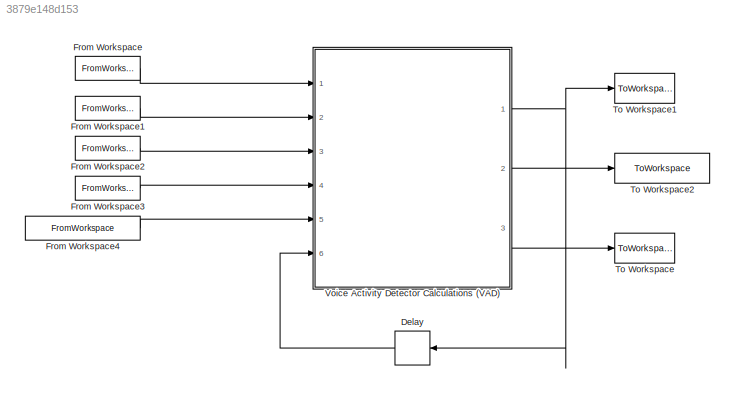
MODEL slx_3879e148d153
KIND model
CONFIG AbsTol = auto
CONFIG EnableMultiTasking = off
CONFIG FixedStep = auto
CONFIG InitFcn = block_verScript;
CONFIG MaxStep = auto
CONFIG MinStep = auto
CONFIG RelTol = 1e-3
CONFIG SampleTimeConstraint = Unconstrained
CONFIG Solver = VariableStepAuto
CONFIG SolverName = VariableStepAuto
CONFIG StartTime = 0.0
CONFIG StopTime = (nSamp-1)*Ts
BLOCK [Delay] Delay
  DelayLength = 1
  InitialCondition = 0
  InputPortMap = u0
  Ports = [1, 1]
  SampleTime = Ts
BLOCK [FromWorkspace] From Workspace
  SampleTime = Ts
  VariableName = postSNRSim
  ZeroCross = on
BLOCK [FromWorkspace] From Workspace1
  SampleTime = Ts
  VariableName = noiseVarianceSim
  ZeroCross = on
BLOCK [FromWorkspace] From Workspace2
  SampleTime = Ts
  VariableName = ksiSim
  ZeroCross = on
BLOCK [FromWorkspace] From Workspace3
  SampleTime = Ts
  VariableName = FFT_sizeInv
  ZeroCross = on
BLOCK [FromWorkspace] From Workspace4
  SampleTime = Ts
  VariableName = noisePowerSim
  ZeroCross = on
BLOCK [ToWorkspace] To Workspace
  FixptAsFi = on
  MaxDataPoints = inf
  Ports = [1]
  SampleTime = Ts
  SaveFormat = Structure With Time
  VariableName = noisePowerOut
BLOCK [ToWorkspace] To Workspace1
  FixptAsFi = on
  MaxDataPoints = inf
  Ports = [1]
  SampleTime = Ts
  SaveFormat = Timeseries
  VariableName = countOut
BLOCK [ToWorkspace] To Workspace2
  FixptAsFi = on
  MaxDataPoints = inf
  Ports = [1]
  SampleTime = Ts
  SaveFormat = Structure With Time
  VariableName = noiseVarianceOut
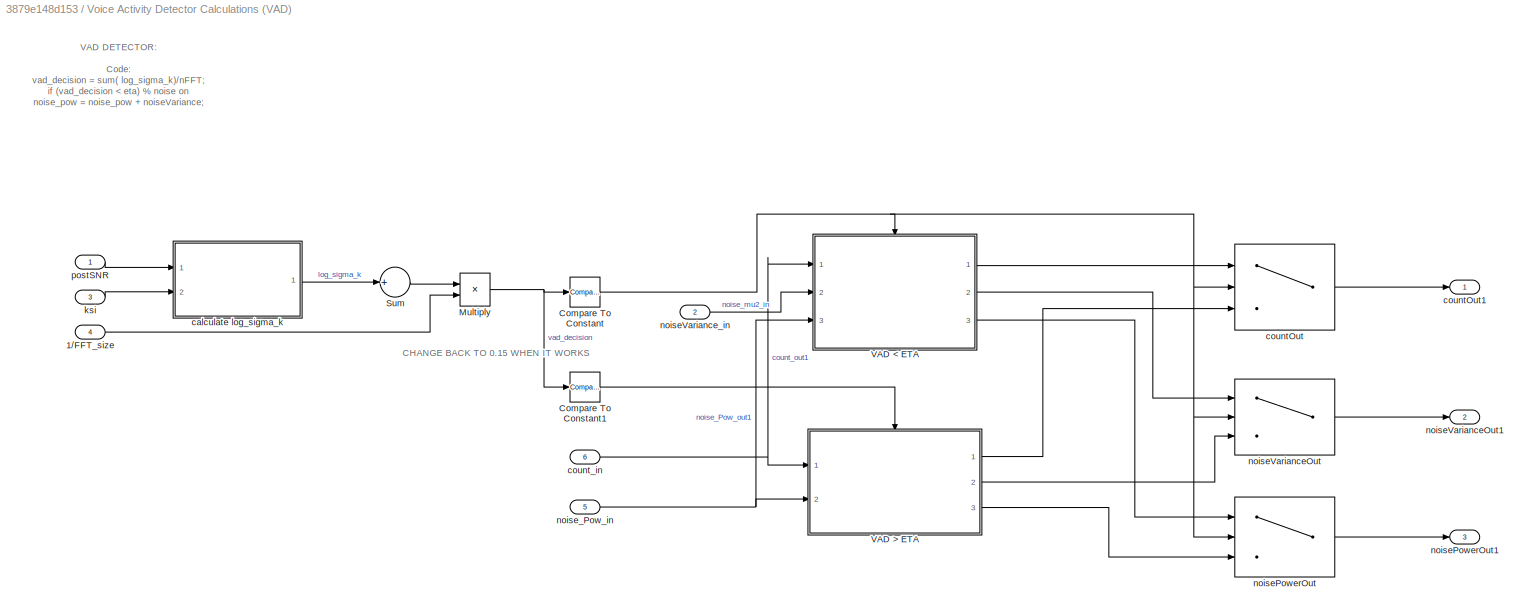
BLOCK [SubSystem] Voice Activity Detector Calculations (VAD)
  Ports = [6, 3]
  RequestExecContextInheritance = off
BLOCK [Inport] Voice Activity Detector Calculations (VAD)/1//FFT_size
  IconDisplay = Port number
  Port = 4
BLOCK [Reference] Voice Activity Detector Calculations (VAD)/Compare To Constant  REF=simulink/Logic and Bit
Operations/Compare
To Constant
  Ports = [1, 1]
  SourceBlock = simulink/Logic and Bit\nOperations/Compare\nTo Constant
  SourceProductBaseCode = SL
  SourceProductName = Simulink
  SourceType = Compare To Constant
BLOCK [Reference] Voice Activity Detector Calculations (VAD)/Compare To Constant1  REF=simulink/Logic and Bit
Operations/Compare
To Constant
  Ports = [1, 1]
  SourceBlock = simulink/Logic and Bit\nOperations/Compare\nTo Constant
  SourceProductBaseCode = SL
  SourceProductName = Simulink
  SourceType = Compare To Constant
BLOCK [Product] Voice Activity Detector Calculations (VAD)/Multiply
  InputSameDT = off
  Inputs = **
  OutDataTypeStr = Inherit: Inherit via internal rule
  Ports = [2, 1]
BLOCK [Sum] Voice Activity Detector Calculations (VAD)/Sum
  IconShape = round
  InputSameDT = off
  Inputs = +
  OutDataTypeStr = Inherit: Inherit via internal rule
  Ports = [1, 1]
  SaturateOnIntegerOverflow = off
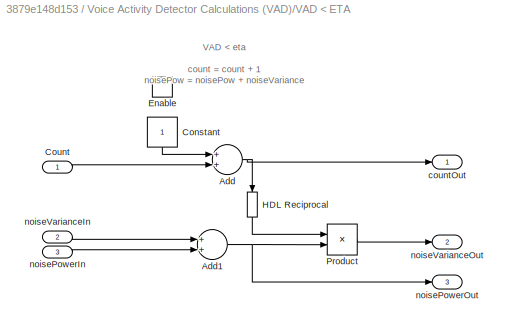
BLOCK [SubSystem] Voice Activity Detector Calculations (VAD)/VAD < ETA
  Ports = [3, 3, 1]
  RequestExecContextInheritance = off
  TreatAsAtomicUnit = on
BLOCK [Sum] Voice Activity Detector Calculations (VAD)/VAD < ETA/Add
  InputSameDT = off
  OutDataTypeStr = Inherit: Inherit via internal rule
  Ports = [2, 1]
  SaturateOnIntegerOverflow = off
BLOCK [Sum] Voice Activity Detector Calculations (VAD)/VAD < ETA/Add1
  InputSameDT = off
  OutDataTypeStr = Inherit: Inherit via internal rule
  Ports = [2, 1]
  SaturateOnIntegerOverflow = off
BLOCK [Constant] Voice Activity Detector Calculations (VAD)/VAD < ETA/Constant
  SampleTime = -1
BLOCK [Inport] Voice Activity Detector Calculations (VAD)/VAD < ETA/Count
  IconDisplay = Port number
BLOCK [EnablePort] Voice Activity Detector Calculations (VAD)/VAD < ETA/Enable
  Ports = []
BLOCK [Reciprocal] Voice Activity Detector Calculations (VAD)/VAD < ETA/HDL Reciprocal
BLOCK [Product] Voice Activity Detector Calculations (VAD)/VAD < ETA/Product
  InputSameDT = off
  OutDataTypeStr = Inherit: Inherit via internal rule
  Ports = [2, 1]
  RndMeth = Floor
  SaturateOnIntegerOverflow = off
BLOCK [Outport] Voice Activity Detector Calculations (VAD)/VAD < ETA/countOut
  IconDisplay = Port number
  InitialOutput = 0
BLOCK [Inport] Voice Activity Detector Calculations (VAD)/VAD < ETA/noisePowerIn
  IconDisplay = Port number
  Port = 3
BLOCK [Outport] Voice Activity Detector Calculations (VAD)/VAD < ETA/noisePowerOut
  IconDisplay = Port number
  InitialOutput = 0
  Port = 3
BLOCK [Inport] Voice Activity Detector Calculations (VAD)/VAD < ETA/noiseVarianceIn
  IconDisplay = Port number
  Port = 2
BLOCK [Outport] Voice Activity Detector Calculations (VAD)/VAD < ETA/noiseVarianceOut
  IconDisplay = Port number
  InitialOutput = 0
  Port = 2
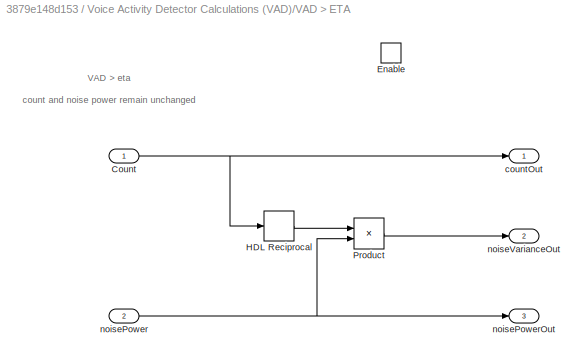
BLOCK [SubSystem] Voice Activity Detector Calculations (VAD)/VAD > ETA
  Ports = [2, 3, 1]
  RequestExecContextInheritance = off
BLOCK [Inport] Voice Activity Detector Calculations (VAD)/VAD > ETA/Count
  IconDisplay = Port number
BLOCK [EnablePort] Voice Activity Detector Calculations (VAD)/VAD > ETA/Enable
  Ports = []
BLOCK [Reciprocal] Voice Activity Detector Calculations (VAD)/VAD > ETA/HDL Reciprocal
BLOCK [Product] Voice Activity Detector Calculations (VAD)/VAD > ETA/Product
  InputSameDT = off
  OutDataTypeStr = Inherit: Inherit via internal rule
  Ports = [2, 1]
  RndMeth = Floor
  SaturateOnIntegerOverflow = off
BLOCK [Outport] Voice Activity Detector Calculations (VAD)/VAD > ETA/countOut
  IconDisplay = Port number
BLOCK [Inport] Voice Activity Detector Calculations (VAD)/VAD > ETA/noisePower
  IconDisplay = Port number
  Port = 2
BLOCK [Outport] Voice Activity Detector Calculations (VAD)/VAD > ETA/noisePowerOut
  IconDisplay = Port number
  Port = 3
BLOCK [Outport] Voice Activity Detector Calculations (VAD)/VAD > ETA/noiseVarianceOut
  IconDisplay = Port number
  Port = 2
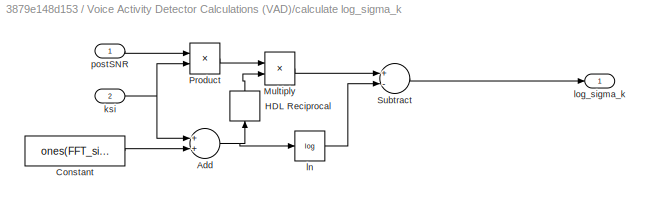
BLOCK [SubSystem] Voice Activity Detector Calculations (VAD)/calculate log_sigma_k
  Ports = [2, 1]
  RequestExecContextInheritance = off
BLOCK [Sum] Voice Activity Detector Calculations (VAD)/calculate log_sigma_k/Add
  InputSameDT = off
  OutDataTypeStr = Inherit: Inherit via internal rule
  Ports = [2, 1]
  SaturateOnIntegerOverflow = off
BLOCK [Constant] Voice Activity Detector Calculations (VAD)/calculate log_sigma_k/Constant
  SampleTime = -1
  Value = ones(FFT_size, 1)
BLOCK [Reciprocal] Voice Activity Detector Calculations (VAD)/calculate log_sigma_k/HDL Reciprocal
BLOCK [Product] Voice Activity Detector Calculations (VAD)/calculate log_sigma_k/Multiply
  InputSameDT = off
  Inputs = **
  OutDataTypeStr = Inherit: Inherit via internal rule
  Ports = [2, 1]
BLOCK [Product] Voice Activity Detector Calculations (VAD)/calculate log_sigma_k/Product
  InputSameDT = off
  OutDataTypeStr = Inherit: Inherit via internal rule
  Ports = [2, 1]
  RndMeth = Floor
  SaturateOnIntegerOverflow = off
BLOCK [Sum] Voice Activity Detector Calculations (VAD)/calculate log_sigma_k/Subtract
  InputSameDT = off
  Inputs = +-
  OutDataTypeStr = Inherit: Inherit via internal rule
  Ports = [2, 1]
  SaturateOnIntegerOverflow = off
BLOCK [Inport] Voice Activity Detector Calculations (VAD)/calculate log_sigma_k/ksi
  IconDisplay = Port number
  Port = 2
BLOCK [Math] Voice Activity Detector Calculations (VAD)/calculate log_sigma_k/ln
  Operator = log
  Ports = [1, 1]
BLOCK [Outport] Voice Activity Detector Calculations (VAD)/calculate log_sigma_k/log_sigma_k
  IconDisplay = Port number
BLOCK [Inport] Voice Activity Detector Calculations (VAD)/calculate log_sigma_k/postSNR
  IconDisplay = Port number
BLOCK [Switch] Voice Activity Detector Calculations (VAD)/countOut
  InputSameDT = off
  SaturateOnIntegerOverflow = off
  Threshold = 1
BLOCK [Outport] Voice Activity Detector Calculations (VAD)/countOut1
  IconDisplay = Port number
  InitialOutput = 0
BLOCK [Inport] Voice Activity Detector Calculations (VAD)/count_in
  IconDisplay = Port number
  Port = 6
BLOCK [Inport] Voice Activity Detector Calculations (VAD)/ksi
  IconDisplay = Port number
  Port = 3
BLOCK [Switch] Voice Activity Detector Calculations (VAD)/noisePowerOut
  InputSameDT = off
  SaturateOnIntegerOverflow = off
  Threshold = 1
BLOCK [Outport] Voice Activity Detector Calculations (VAD)/noisePowerOut1
  IconDisplay = Port number
  InitialOutput = 0
  Port = 3
BLOCK [Switch] Voice Activity Detector Calculations (VAD)/noiseVarianceOut
  InputSameDT = off
  SaturateOnIntegerOverflow = off
  Threshold = 1
BLOCK [Outport] Voice Activity Detector Calculations (VAD)/noiseVarianceOut1
  IconDisplay = Port number
  InitialOutput = 0
  Port = 2
BLOCK [Inport] Voice Activity Detector Calculations (VAD)/noiseVariance_in
  IconDisplay = Port number
  Port = 2
BLOCK [Inport] Voice Activity Detector Calculations (VAD)/noise_Pow_in 
  IconDisplay = Port number
  Port = 5
BLOCK [Inport] Voice Activity Detector Calculations (VAD)/postSNR
  IconDisplay = Port number
ANNOTATION Voice Activity Detector Calculations (VAD): CHANGE BACK TO 0.15 WHEN IT WORKS
ANNOTATION Voice Activity Detector Calculations (VAD): VAD DETECTOR: Code: vad_decision = sum( log_sigma_k)/nFFT; if (vad_decision < eta) % noise on noise_pow = noise_pow + noiseVariance; count = count+1; end noiseVariance = noise_pow./count; The two subsystems represent the updated noise variance, noise power, and count variables based on whether or not VAD < eta.
ANNOTATION Voice Activity Detector Calculations (VAD)/VAD < ETA: VAD < eta count = count + 1 noisePow = noisePow + noiseVariance
ANNOTATION Voice Activity Detector Calculations (VAD)/VAD > ETA: VAD > eta count and noise power remain unchanged
LINE Delay:1 -> Voice Activity Detector Calculations (VAD):6
LINE From Workspace1:1 -> Voice Activity Detector Calculations (VAD):2
LINE From Workspace2:1 -> Voice Activity Detector Calculations (VAD):3
LINE From Workspace3:1 -> Voice Activity Detector Calculations (VAD):4
LINE From Workspace4:1 -> Voice Activity Detector Calculations (VAD):5
LINE From Workspace:1 -> Voice Activity Detector Calculations (VAD):1
LINE Voice Activity Detector Calculations (VAD)/1//FFT_size:1 -> Voice Activity Detector Calculations (VAD)/Multiply:2
LINE Voice Activity Detector Calculations (VAD)/Compare To Constant1:1 -> Voice Activity Detector Calculations (VAD)/VAD > ETA:enable
NET Voice Activity Detector Calculations (VAD)/Compare To Constant:1 -> Voice Activity Detector Calculations (VAD)/VAD < ETA:enable, Voice Activity Detector Calculations (VAD)/countOut:2, Voice Activity Detector Calculations (VAD)/noisePowerOut:2, Voice Activity Detector Calculations (VAD)/noiseVarianceOut:2
NET Voice Activity Detector Calculations (VAD)/Multiply:1 -> Voice Activity Detector Calculations (VAD)/Compare To Constant1:1, Voice Activity Detector Calculations (VAD)/Compare To Constant:1
LINE Voice Activity Detector Calculations (VAD)/Sum:1 -> Voice Activity Detector Calculations (VAD)/Multiply:1
NET Voice Activity Detector Calculations (VAD)/VAD < ETA/Add1:1 -> Voice Activity Detector Calculations (VAD)/VAD < ETA/Product:2, Voice Activity Detector Calculations (VAD)/VAD < ETA/noisePowerOut:1
NET Voice Activity Detector Calculations (VAD)/VAD < ETA/Add:1 -> Voice Activity Detector Calculations (VAD)/VAD < ETA/HDL Reciprocal:1, Voice Activity Detector Calculations (VAD)/VAD < ETA/countOut:1
LINE Voice Activity Detector Calculations (VAD)/VAD < ETA/Constant:1 -> Voice Activity Detector Calculations (VAD)/VAD < ETA/Add:1
LINE Voice Activity Detector Calculations (VAD)/VAD < ETA/Count:1 -> Voice Activity Detector Calculations (VAD)/VAD < ETA/Add:2
LINE Voice Activity Detector Calculations (VAD)/VAD < ETA/HDL Reciprocal:1 -> Voice Activity Detector Calculations (VAD)/VAD < ETA/Product:1
LINE Voice Activity Detector Calculations (VAD)/VAD < ETA/Product:1 -> Voice Activity Detector Calculations (VAD)/VAD < ETA/noiseVarianceOut:1
LINE Voice Activity Detector Calculations (VAD)/VAD < ETA/noisePowerIn:1 -> Voice Activity Detector Calculations (VAD)/VAD < ETA/Add1:2
LINE Voice Activity Detector Calculations (VAD)/VAD < ETA/noiseVarianceIn:1 -> Voice Activity Detector Calculations (VAD)/VAD < ETA/Add1:1
LINE Voice Activity Detector Calculations (VAD)/VAD < ETA:1 -> Voice Activity Detector Calculations (VAD)/countOut:1
LINE Voice Activity Detector Calculations (VAD)/VAD < ETA:2 -> Voice Activity Detector Calculations (VAD)/noiseVarianceOut:1
LINE Voice Activity Detector Calculations (VAD)/VAD < ETA:3 -> Voice Activity Detector Calculations (VAD)/noisePowerOut:1
NET Voice Activity Detector Calculations (VAD)/VAD > ETA/Count:1 -> Voice Activity Detector Calculations (VAD)/VAD > ETA/HDL Reciprocal:1, Voice Activity Detector Calculations (VAD)/VAD > ETA/countOut:1
LINE Voice Activity Detector Calculations (VAD)/VAD > ETA/HDL Reciprocal:1 -> Voice Activity Detector Calculations (VAD)/VAD > ETA/Product:1
LINE Voice Activity Detector Calculations (VAD)/VAD > ETA/Product:1 -> Voice Activity Detector Calculations (VAD)/VAD > ETA/noiseVarianceOut:1
NET Voice Activity Detector Calculations (VAD)/VAD > ETA/noisePower:1 -> Voice Activity Detector Calculations (VAD)/VAD > ETA/Product:2, Voice Activity Detector Calculations (VAD)/VAD > ETA/noisePowerOut:1
LINE Voice Activity Detector Calculations (VAD)/VAD > ETA:1 -> Voice Activity Detector Calculations (VAD)/countOut:3
LINE Voice Activity Detector Calculations (VAD)/VAD > ETA:2 -> Voice Activity Detector Calculations (VAD)/noiseVarianceOut:3
LINE Voice Activity Detector Calculations (VAD)/VAD > ETA:3 -> Voice Activity Detector Calculations (VAD)/noisePowerOut:3
NET Voice Activity Detector Calculations (VAD)/calculate log_sigma_k/Add:1 -> Voice Activity Detector Calculations (VAD)/calculate log_sigma_k/HDL Reciprocal:1, Voice Activity Detector Calculations (VAD)/calculate log_sigma_k/ln:1
LINE Voice Activity Detector Calculations (VAD)/calculate log_sigma_k/Constant:1 -> Voice Activity Detector Calculations (VAD)/calculate log_sigma_k/Add:2
LINE Voice Activity Detector Calculations (VAD)/calculate log_sigma_k/HDL Reciprocal:1 -> Voice Activity Detector Calculations (VAD)/calculate log_sigma_k/Multiply:2
LINE Voice Activity Detector Calculations (VAD)/calculate log_sigma_k/Multiply:1 -> Voice Activity Detector Calculations (VAD)/calculate log_sigma_k/Subtract:1
LINE Voice Activity Detector Calculations (VAD)/calculate log_sigma_k/Product:1 -> Voice Activity Detector Calculations (VAD)/calculate log_sigma_k/Multiply:1
LINE Voice Activity Detector Calculations (VAD)/calculate log_sigma_k/Subtract:1 -> Voice Activity Detector Calculations (VAD)/calculate log_sigma_k/log_sigma_k:1
NET Voice Activity Detector Calculations (VAD)/calculate log_sigma_k/ksi:1 -> Voice Activity Detector Calculations (VAD)/calculate log_sigma_k/Add:1, Voice Activity Detector Calculations (VAD)/calculate log_sigma_k/Product:2
LINE Voice Activity Detector Calculations (VAD)/calculate log_sigma_k/ln:1 -> Voice Activity Detector Calculations (VAD)/calculate log_sigma_k/Subtract:2
LINE Voice Activity Detector Calculations (VAD)/calculate log_sigma_k/postSNR:1 -> Voice Activity Detector Calculations (VAD)/calculate log_sigma_k/Product:1
LINE Voice Activity Detector Calculations (VAD)/calculate log_sigma_k:1 -> Voice Activity Detector Calculations (VAD)/Sum:1
LINE Voice Activity Detector Calculations (VAD)/countOut:1 -> Voice Activity Detector Calculations (VAD)/countOut1:1
NET Voice Activity Detector Calculations (VAD)/count_in:1 -> Voice Activity Detector Calculations (VAD)/VAD < ETA:1, Voice Activity Detector Calculations (VAD)/VAD > ETA:1
LINE Voice Activity Detector Calculations (VAD)/ksi:1 -> Voice Activity Detector Calculations (VAD)/calculate log_sigma_k:2
LINE Voice Activity Detector Calculations (VAD)/noisePowerOut:1 -> Voice Activity Detector Calculations (VAD)/noisePowerOut1:1
LINE Voice Activity Detector Calculations (VAD)/noiseVarianceOut:1 -> Voice Activity Detector Calculations (VAD)/noiseVarianceOut1:1
LINE Voice Activity Detector Calculations (VAD)/noiseVariance_in:1 -> Voice Activity Detector Calculations (VAD)/VAD < ETA:2
NET Voice Activity Detector Calculations (VAD)/noise_Pow_in :1 -> Voice Activity Detector Calculations (VAD)/VAD < ETA:3, Voice Activity Detector Calculations (VAD)/VAD > ETA:2
LINE Voice Activity Detector Calculations (VAD)/postSNR:1 -> Voice Activity Detector Calculations (VAD)/calculate log_sigma_k:1
NET Voice Activity Detector Calculations (VAD):1 -> Delay:1, To Workspace1:1
LINE Voice Activity Detector Calculations (VAD):2 -> To Workspace2:1
LINE Voice Activity Detector Calculations (VAD):3 -> To Workspace:1
note: NET lines group one-source signal fan-out (src -> all destinations, sorted); 1:1 wires keep LINE
